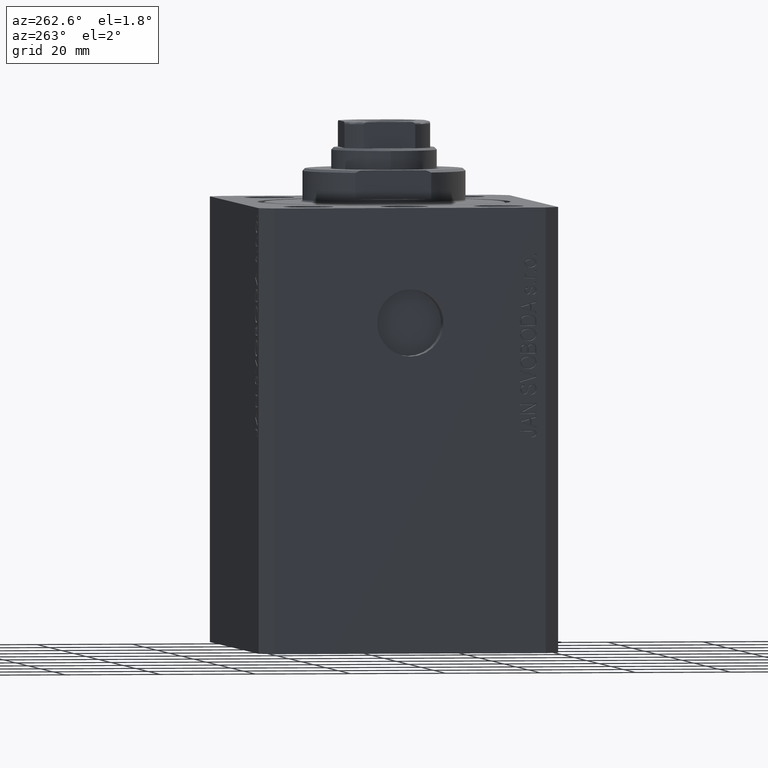
[diagram: clean part render]
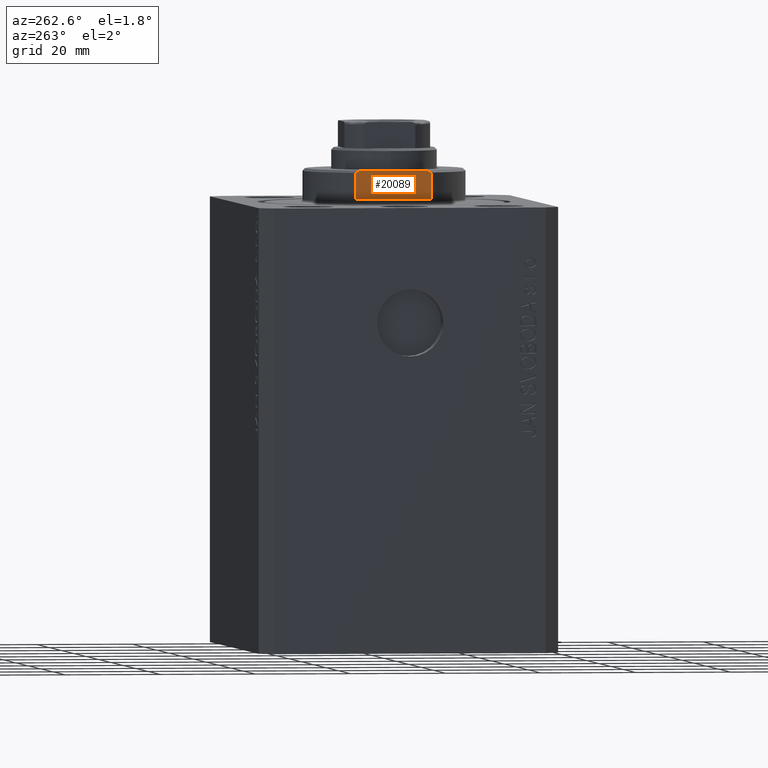
[diagram: same view with one face highlighted and labeled with its STEP entity id]
A machine part, auxiliary view. The second image highlights one B-rep face of the part: STEP entity #20089.
In plain terms, the highlighted planar face has unit normal (-1, 0, 0).
Its self-contained STEP definition (entity closure, byte-faithful):
#207 = CARTESIAN_POINT ( 'NONE',  ( 15.00000000000000000, 7.628315461082487481, -6.674910371255303509 ) ) ;
#1335 = DIRECTION ( 'NONE',  ( 0.000000000000000000, 0.000000000000000000, -1.000000000000000000 ) ) ;
#2029 = LINE ( 'NONE', #22009, #3561 ) ;
#2762 = ORIENTED_EDGE ( 'NONE', *, *, #8995, .T. ) ;
#3561 = VECTOR ( 'NONE', #22440, 1000.000000000000000 ) ;
#3672 = CARTESIAN_POINT ( 'NONE',  ( 14.99999999999999645, -6.873863542433781504, -7.000000000000000000 ) ) ;
#3839 = VECTOR ( 'NONE', #40596, 1000.000000000000000 ) ;
#7345 = VERTEX_POINT ( 'NONE', #39023 ) ;
#8484 = CARTESIAN_POINT ( 'NONE',  ( 15.00000000000000000, -8.000000000000001776, -6.500000000000000000 ) ) ;
#8995 = EDGE_CURVE ( 'NONE', #21424, #28151, #16019, .T. ) ;
#9285 = CARTESIAN_POINT ( 'NONE',  ( 15.00000000000000000, -42.42640687119285303, -1.000000000000000000 ) ) ;
#9429 = CARTESIAN_POINT ( 'NONE',  ( 15.00000000000000000, 8.000000000000001776, -7.000000000000000000 ) ) ;
#12945 = EDGE_CURVE ( 'NONE', #28151, #37220, #35659, .T. ) ;
#13514 = ORIENTED_EDGE ( 'NONE', *, *, #12945, .T. ) ;
#13711 = CARTESIAN_POINT ( 'NONE',  ( 14.99999999999999645, -6.873863542433781504, -7.000000000000000000 ) ) ;
#14555 = CARTESIAN_POINT ( 'NONE',  ( 15.00000000000000000, -8.000000000000001776, -7.000000000000000000 ) ) ;
#16019 = LINE ( 'NONE', #9285, #17094 ) ;
#16241 = DIRECTION ( 'NONE',  ( 0.000000000000000000, -1.000000000000000000, -0.000000000000000000 ) ) ;
#17094 = VECTOR ( 'NONE', #16241, 1000.000000000000000 ) ;
#17843 = EDGE_CURVE ( 'NONE', #7345, #42509, #2029, .T. ) ;
#17902 = CARTESIAN_POINT ( 'NONE',  ( 14.99999999999999645, 6.873863542433781504, -7.000000000000000000 ) ) ;
#17959 = B_SPLINE_CURVE_WITH_KNOTS ( 'NONE', 3,
 ( #13711, #20669, #27402, #38150 ),
 .UNSPECIFIED., .F., .F.,
 ( 4, 4 ),
 ( 0.04875332532859016216, 0.04998905627745618696 ),
 .UNSPECIFIED. ) ;
#19310 = ORIENTED_EDGE ( 'NONE', *, *, #33211, .T. ) ;
#20089 = ADVANCED_FACE ( 'NONE', ( #39015 ), #29151, .T. ) ;
#20462 = B_SPLINE_CURVE_WITH_KNOTS ( 'NONE', 3,
 ( #30953, #207, #38325, #17902 ),
 .UNSPECIFIED., .F., .F.,
 ( 4, 4 ),
 ( 0.03336039268696994881, 0.03459498301323800373 ),
 .UNSPECIFIED. ) ;
#20526 = CARTESIAN_POINT ( 'NONE',  ( 14.99999999999999645, 8.000000000000003553, -1.000000000000000000 ) ) ;
#20669 = CARTESIAN_POINT ( 'NONE',  ( 15.00000000000000000, -7.254193676168137372, -6.841555306644506729 ) ) ;
#21424 = VERTEX_POINT ( 'NONE', #20526 ) ;
#22009 = CARTESIAN_POINT ( 'NONE',  ( 15.00000000000000000, -42.42640687119285303, -7.000000000000000000 ) ) ;
#22196 = DIRECTION ( 'NONE',  ( -0.000000000000000000, 0.000000000000000000, -1.000000000000000000 ) ) ;
#22440 = DIRECTION ( 'NONE',  ( 0.000000000000000000, -1.000000000000000000, -0.000000000000000000 ) ) ;
#23197 = CARTESIAN_POINT ( 'NONE',  ( 14.99999999999999645, -8.000000000000003553, -1.000000000000000000 ) ) ;
#23478 = ORIENTED_EDGE ( 'NONE', *, *, #43388, .F. ) ;
#24683 = EDGE_CURVE ( 'NONE', #31022, #7345, #20462, .T. ) ;
#25156 = EDGE_LOOP ( 'NONE', ( #19310, #2762, #13514, #23478, #41901, #41315 ) ) ;
#26476 = LINE ( 'NONE', #9429, #3839 ) ;
#27402 = CARTESIAN_POINT ( 'NONE',  ( 15.00000000000000000, -7.629305121525813860, -6.674444648693738102 ) ) ;
#28151 = VERTEX_POINT ( 'NONE', #23197 ) ;
#29151 = PLANE ( 'NONE',  #30120 ) ;
#30120 = AXIS2_PLACEMENT_3D ( 'NONE', #38342, #42807, #22196 ) ;
#30953 = CARTESIAN_POINT ( 'NONE',  ( 15.00000000000000000, 8.000000000000001776, -6.500000000000000888 ) ) ;
#31022 = VERTEX_POINT ( 'NONE', #42287 ) ;
#33211 = EDGE_CURVE ( 'NONE', #31022, #21424, #26476, .T. ) ;
#34726 = VECTOR ( 'NONE', #1335, 1000.000000000000000 ) ;
#35659 = LINE ( 'NONE', #14555, #34726 ) ;
#37220 = VERTEX_POINT ( 'NONE', #8484 ) ;
#38150 = CARTESIAN_POINT ( 'NONE',  ( 15.00000000000000000, -8.000000000000001776, -6.500000000000000000 ) ) ;
#38325 = CARTESIAN_POINT ( 'NONE',  ( 15.00000000000000000, 7.253126193285938328, -6.842000017654663147 ) ) ;
#38342 = CARTESIAN_POINT ( 'NONE',  ( 15.00000000000000000, -42.42640687119285303, -1.000000000000000000 ) ) ;
#39015 = FACE_OUTER_BOUND ( 'NONE', #25156, .T. ) ;
#39023 = CARTESIAN_POINT ( 'NONE',  ( 14.99999999999999645, 6.873863542433781504, -7.000000000000000000 ) ) ;
#40596 = DIRECTION ( 'NONE',  ( -0.000000000000000000, -0.000000000000000000, 1.000000000000000000 ) ) ;
#41315 = ORIENTED_EDGE ( 'NONE', *, *, #24683, .F. ) ;
#41901 = ORIENTED_EDGE ( 'NONE', *, *, #17843, .F. ) ;
#42287 = CARTESIAN_POINT ( 'NONE',  ( 15.00000000000000000, 8.000000000000001776, -6.500000000000000888 ) ) ;
#42509 = VERTEX_POINT ( 'NONE', #3672 ) ;
#42807 = DIRECTION ( 'NONE',  ( 1.000000000000000000, 0.000000000000000000, -0.000000000000000000 ) ) ;
#43388 = EDGE_CURVE ( 'NONE', #42509, #37220, #17959, .T. ) ;